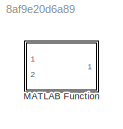
MODEL slx_8af9e20d6a89
KIND model
CONFIG AbsTol = auto
CONFIG EnableMultiTasking = off
CONFIG FixedStep = auto
CONFIG MaxStep = auto
CONFIG MinStep = auto
CONFIG RelTol = 1e-3
CONFIG SampleTimeConstraint = Unconstrained
CONFIG Solver = VariableStepAuto
CONFIG SolverName = VariableStepAuto
CONFIG StartTime = 0.0
CONFIG StopTime = 10.0
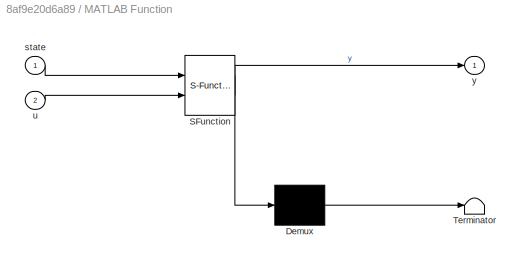
BLOCK [SubSystem] MATLAB Function
  ErrorFcn = Stateflow.Translate.translate
  PermitHierarchicalResolution = ExplicitOnly
  Ports = [2, 1]
  RequestExecContextInheritance = off
  SFBlockType = MATLAB Function
  TreatAsAtomicUnit = on
BLOCK [Demux] MATLAB Function/ Demux 
  Outputs = 1
  Ports = [1, 1]
BLOCK [S-Function] MATLAB Function/ SFunction 
  EnableBusSupport = off
  FunctionName = sf_sfun
  PortCounts = [2 2]
  Ports = [2, 2]
  SFcnIsStateOwnerBlock = off
  SFunctionDeploymentMode = off
  Tag = Stateflow S-Function untitled 2
BLOCK [Terminator] MATLAB Function/ Terminator 
BLOCK [Inport] MATLAB Function/state
  IconDisplay = Port number
BLOCK [Inport] MATLAB Function/u
  IconDisplay = Port number
  Port = 2
BLOCK [Outport] MATLAB Function/y
  IconDisplay = Port number
CHART MATLAB Function states=1 transitions=1
  STATE_LABEL 'eML_blk_kernel()'
  STATE_LABEL 'SCRIPT:\nfunction y = dynamics_1d(state, u)\n\nl=.085;%m\nlb=.075;%m\nmb=.419;%kg\nmw=.204;%kg\nIb=3.34*10^-3;\nIw=.57*10^-3;\nCb=1.02*10^-3;\nCw=.05*10^-3;\ng=9.81;\nk=25.1*10^-3;\n\ntheta_b=state(1);\ntheta_bdot=state(2);\ntheta_wdot=x(4);\n\nf1=theta_bdot;\nf2=((mb*lb+mw*l)*g*sin(theta_b)-k*u-Cb*theta_bdot+Cw*theta_wdot)/(Ib+mw*l^2);\nf3=theta_wdot;\nf4=(Ib+Iw+mw*l^2)*(k*u-Cw*theta_wdot)/(Iw*(Ib+mw*l^2))-((mb*lb+mw...<+72ch>'
